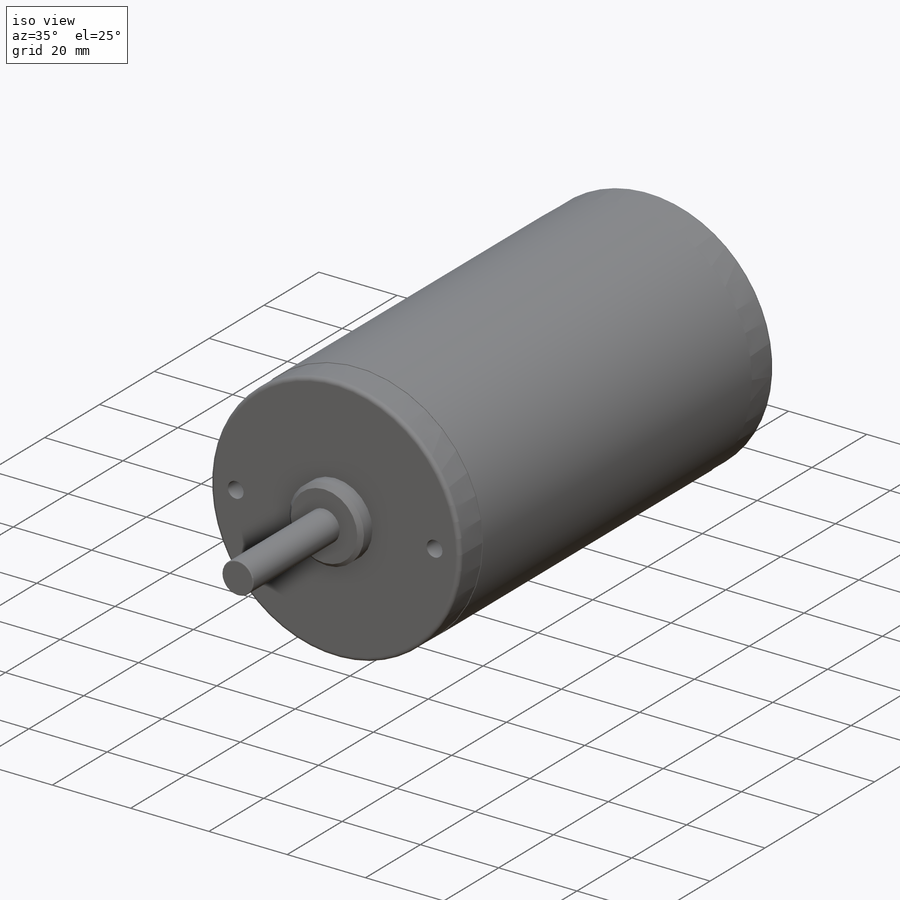
[diagram: iso view]
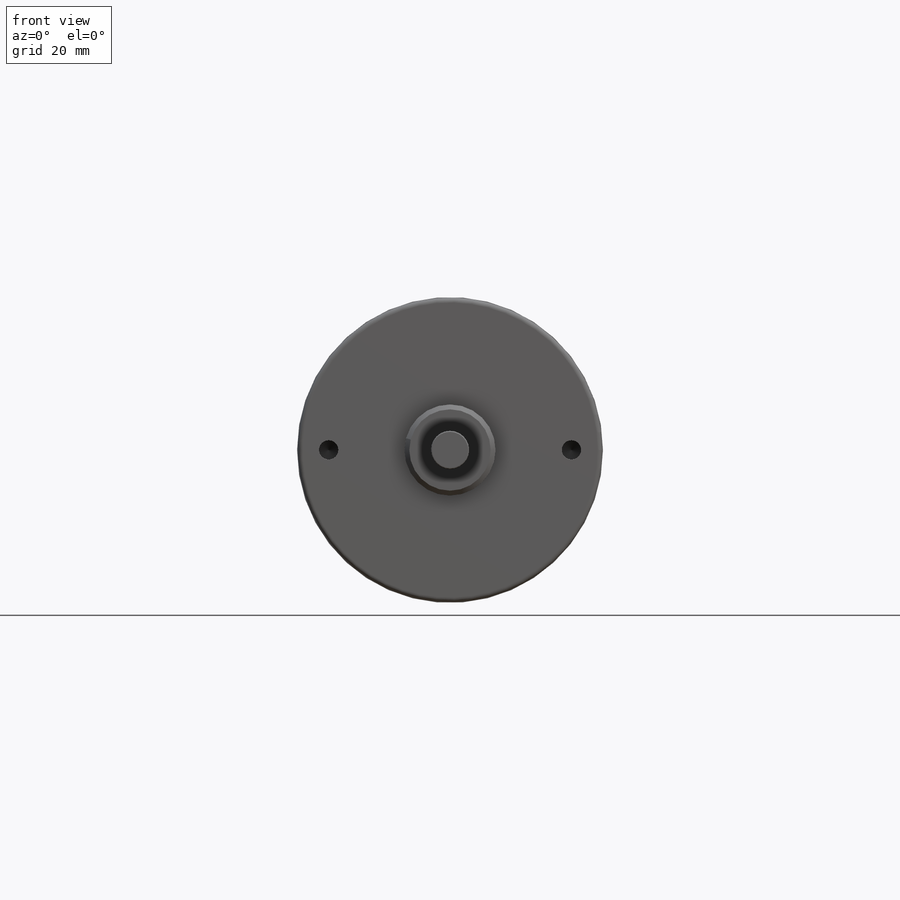
[diagram: front view]
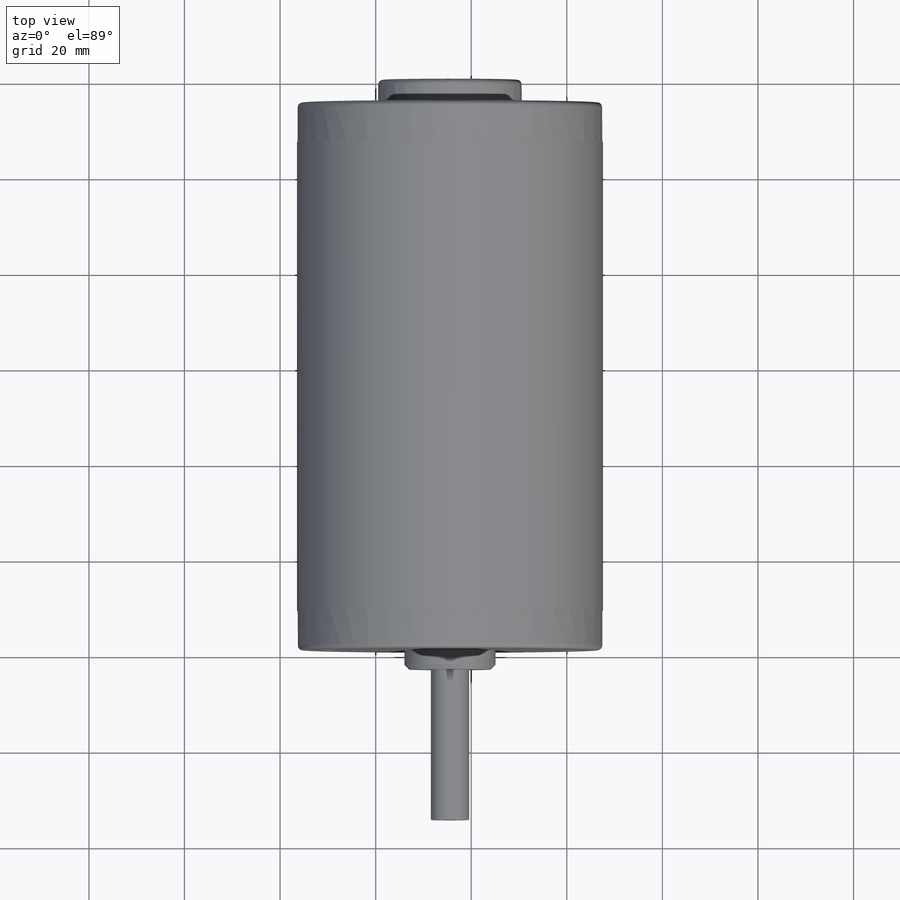
[diagram: top view]
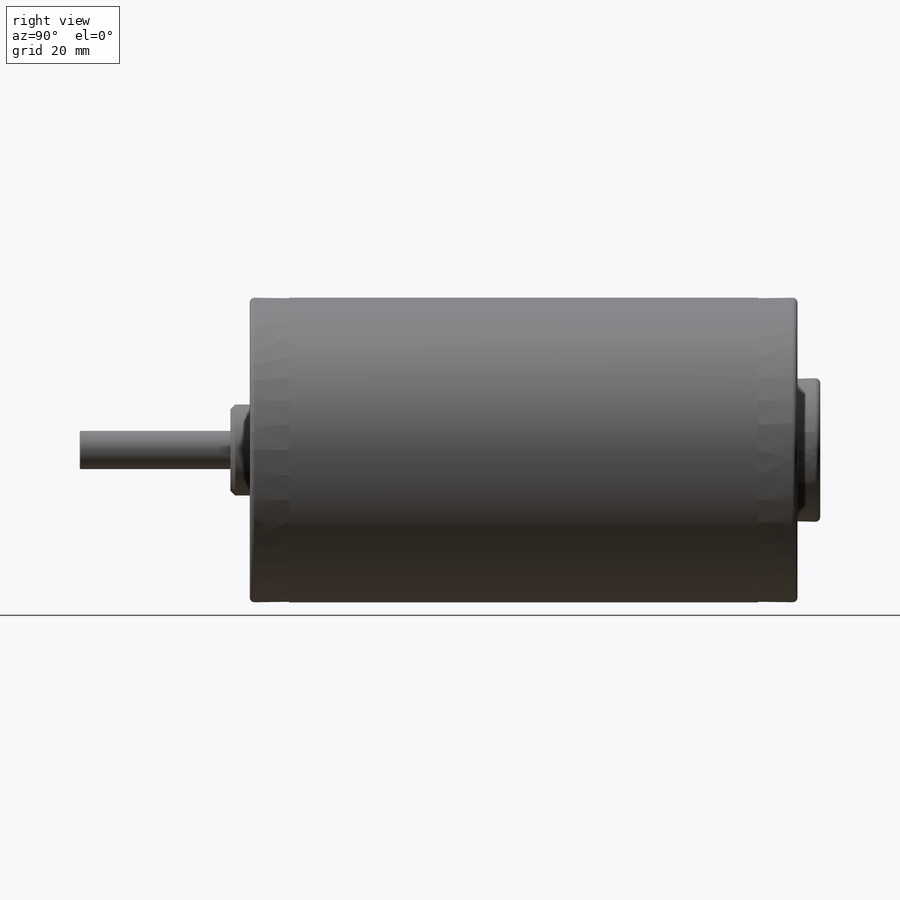
[diagram: right view]
SOLIDWORKS PART (.sldprt)
format: sldprt  version: not decoded by parser v0  size: 411,648 bytes
history: native  units: mm
features: sketch x13, plane x5, extrude x5, fillet x5, revolve x3, hole x2, material x1, chamfer x1, cut_extrude x1 (+13 scaffold rows collapsed)
feature tree (49):
  scaffold x13  (default folders/planes/origin — collapsed)
  material  "Material <not specified>"
  plane  "Plane1"
  sketch  "Sketch1"
  revolve  "Revolve1"  Angle=360deg
  sketch  "Sketch2"
  extrude  "Boss-Extrude1"  Depth=8.2296mm
  plane  "Plane2"
  sketch  "Sketch5"
  extrude  "Boss-Extrude2"  Depth=4.572mm
  sketch  "Sketch6"
  extrude  "Boss-Extrude3"  Depth=31.5mm
  sketch  "Sketch8"
  extrude  "Boss-Extrude4"  Depth=8.2296mm
  sketch  "Sketch9"
  extrude  "Boss-Extrude5"  Depth=4.7625mm
  plane  "Plane3"  Offset=120.50356mm
  sketch  "Sketch10"
  revolve  "Revolve2"  Angle=360deg
  plane  "Plane4"  Offset=127.903291mm
  sketch  "Sketch11"
  revolve  "Revolve3"  Angle=360deg
  hole  "Hole2"  Diameter=4.0386mm Depth=13.6144mm
  sketch  "Sketch13"
  sketch  "Sketch12"  dims[c1.D1=~97.659253deg c1.D2=~82.982399deg c1.Diameter=4.0386mm c2.D2=100.0mm c2.D3=~82.982399deg c2.D4=90.0deg c3.D3=~97.716715deg c3.Depth=13.6144mm c3.Drill Angle=118.0deg]
  hole  "Hole3"  Diameter=4.0386mm Depth=13.6144mm
  sketch  "Sketch15"
  sketch  "Sketch14"  dims[c1.D1=~97.659253deg c1.D2=~82.982399deg c1.Diameter=4.0386mm c2.D2=100.0mm c2.D3=~82.982399deg c2.D4=90.0deg c3.D3=~97.716715deg c3.Depth=13.6144mm c3.Drill Angle=118.0deg]
  chamfer  "Chamfer1"  Distance=1.016mm Angle=45deg
  fillet  "Fillet1"  Radius=0.254mm
  fillet  "Fillet2"  Radius=1mm
  fillet  "Fillet3"  Radius=1mm
  fillet  "Fillet4"  Radius=1mm
  plane  "Plane5"
  sketch  "Sketch16"  dims[c1.D1=~25.596585mm c2.D1=270.0deg c3.D1=~25.596585mm c4.D1=90.0deg c5.D1=7.0mm c5.D2=2.1mm c5.D3=20.1mm]
  cut_extrude  "Cut-Extrude2"  Depth=1.2mm
  fillet  "Fillet5"  Radius=1.05mm
decode coverage: 20 of 30 modeling features carry decoded parameters
note: ~ marks probable driven/reference dimensions
note: suppression state not decoded; provenance and decode notes live in map.json
